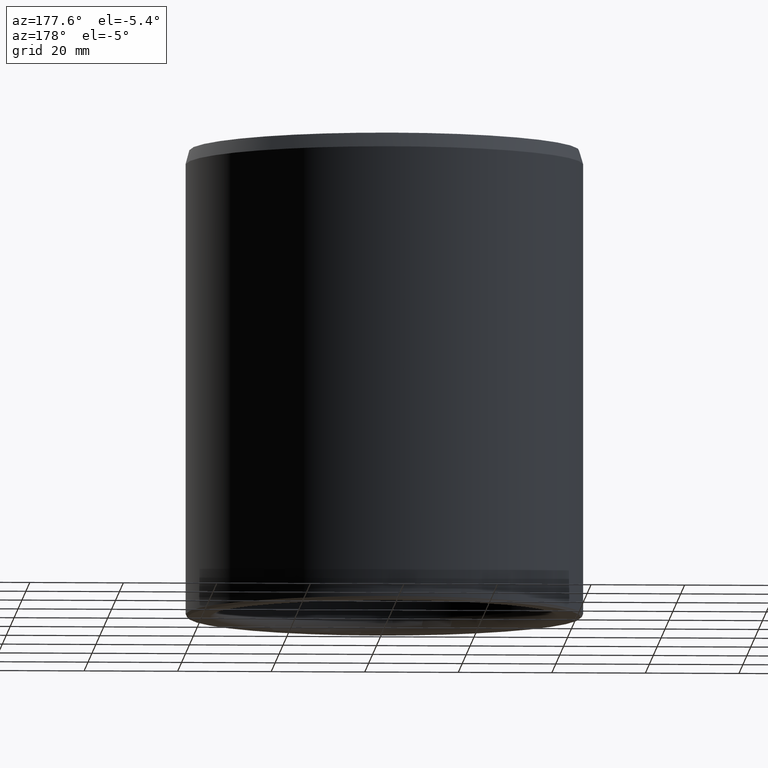
[diagram: clean part render]
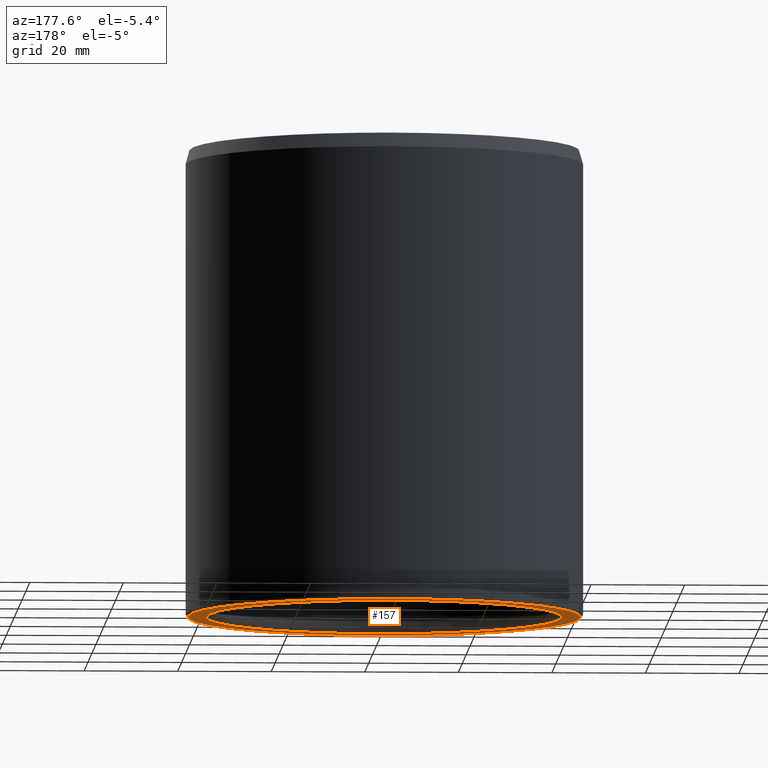
[diagram: same view with one face highlighted and labeled with its STEP entity id]
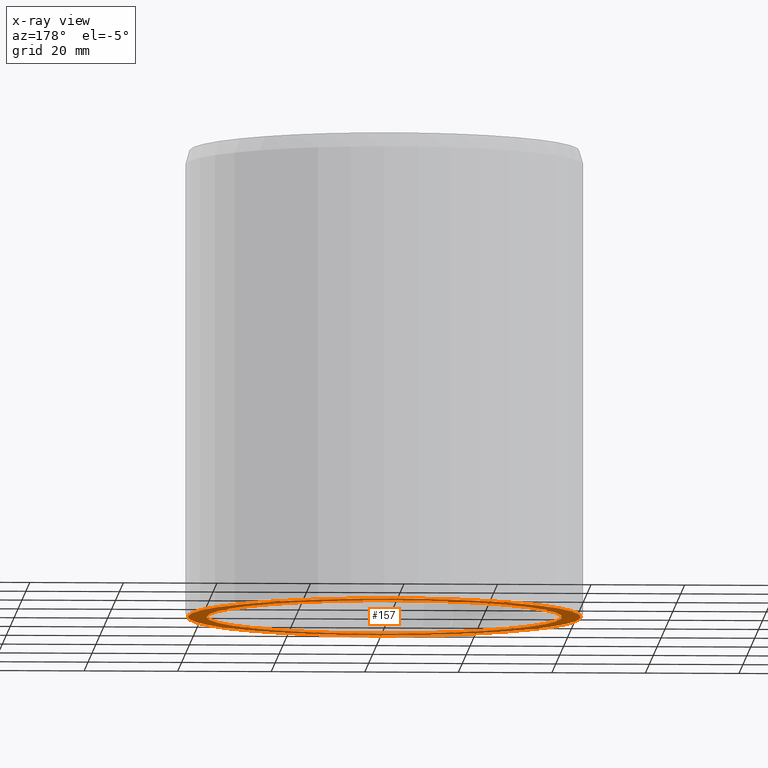
[diagram: x-ray of the same camera — body ghosted, the highlighted face saturated]
A machine part, auxiliary view. The second image highlights one B-rep face of the part: STEP entity #157.
The next image is the same camera in x-ray: the body ghosted, the highlighted face saturated — about 0% of this face is hidden behind the body in this view.
In plain terms, the highlighted planar face has unit normal (0, -0, -1).
Its self-contained STEP definition (entity closure, byte-faithful):
#157=ADVANCED_FACE('',(#175,#176),#177,.T.);
#175=FACE_BOUND('',#200,.T.);
#176=FACE_OUTER_BOUND('',#201,.T.);
#177=PLANE('',#202);
#200=EDGE_LOOP('',(#232));
#201=EDGE_LOOP('',(#233));
#202=AXIS2_PLACEMENT_3D('',#234,#235,#236);
#232=ORIENTED_EDGE('',*,*,#252,.T.);
#233=ORIENTED_EDGE('',*,*,#257,.T.);
#234=CARTESIAN_POINT('',(0.035,0.0,4.28626379701573E-019));
#235=DIRECTION('',(0.0,-6.12323399573677E-017,-1.0));
#236=DIRECTION('',(0.0,1.0,-6.12323399573677E-017));
#252=EDGE_CURVE('',#260,#260,#261,.F.);
#257=EDGE_CURVE('',#270,#270,#271,.T.);
#260=VERTEX_POINT('',#276);
#261=CIRCLE('',#277,0.038);
#270=VERTEX_POINT('',#286);
#271=CIRCLE('',#287,0.042);
#276=CARTESIAN_POINT('',(0.0,0.038,-1.89314804938577E-018));
#277=AXIS2_PLACEMENT_3D('',#292,#293,#294);
#286=CARTESIAN_POINT('',(0.042,0.0,8.57252759403146E-019));
#287=AXIS2_PLACEMENT_3D('',#307,#308,#309);
#292=CARTESIAN_POINT('',(0.0,2.40741243048404E-035,4.33680868994202E-019));
#293=DIRECTION('',(0.0,-6.12323399573677E-017,-1.0));
#294=DIRECTION('',(0.0,1.0,-6.12323399573677E-017));
#307=CARTESIAN_POINT('',(0.0,0.0,8.57252759403146E-019));
#308=DIRECTION('',(0.0,-6.12323399573677E-017,-1.0));
#309=DIRECTION('',(0.0,1.0,-6.12323399573677E-017));